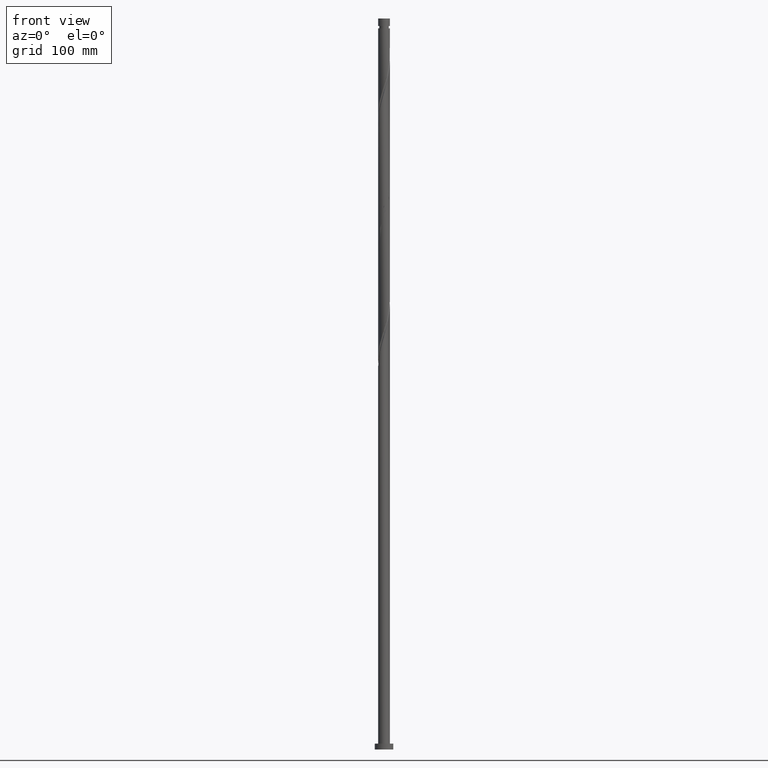
[diagram: clean part render]
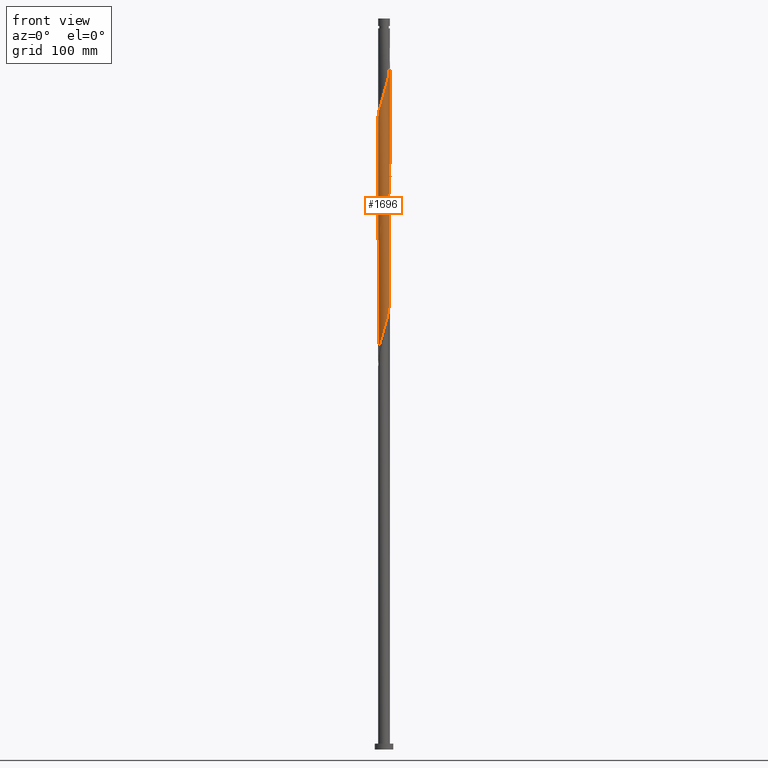
[diagram: same view with one face highlighted and labeled with its STEP entity id]
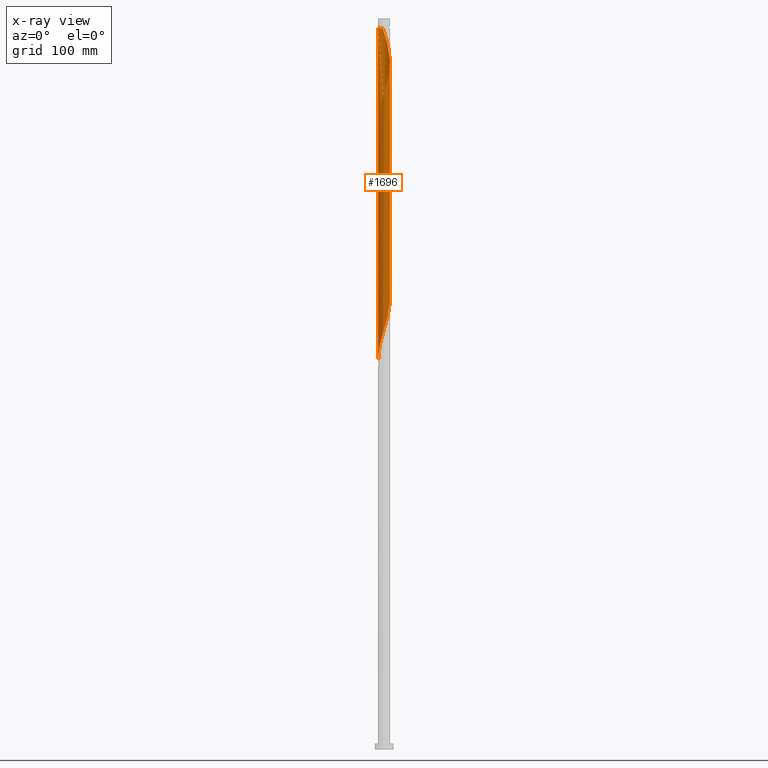
[diagram: x-ray of the same camera — body ghosted, the highlighted face saturated]
A machine part, front view. The second image highlights one B-rep face of the part: STEP entity #1696.
The next image is the same camera in x-ray: the body ghosted, the highlighted face saturated — about 0% of this face is hidden behind the body in this view.
In plain terms, the highlighted cylindrical surface (bore or boss wall) has radius 5.1 mm, axis along (-0, -0, -1).
Its self-contained STEP definition (entity closure, byte-faithful):
#1 = CARTESIAN_POINT ( 'NONE',  ( 2.617120146630278921, -4.377291644167875084, 476.3298745475585179 ) ) ;
#10 = CARTESIAN_POINT ( 'NONE',  ( -3.149726232636924195, -4.038881139580454693, 456.2563451357937083 ) ) ;
#20 = CARTESIAN_POINT ( 'NONE',  ( -4.804148149758891151, -1.775808760927855445, 446.9916392534408942 ) ) ;
#27 = CARTESIAN_POINT ( 'NONE',  ( 1.324962605423091633, -4.947505461790856707, 471.6975216063818834 ) ) ;
#34 = CARTESIAN_POINT ( 'NONE',  ( 3.022735951043644231, -4.134779748727637205, 477.8739921946173581 ) ) ;
#46 = CARTESIAN_POINT ( 'NONE',  ( -1.478020089766422629, -4.903956852834939539, 357.4328157240290693 ) ) ;
#56 = CARTESIAN_POINT ( 'NONE',  ( 2.211504342216913166, -4.619803539608112075, 369.7857569004996208 ) ) ;
#67 = CARTESIAN_POINT ( 'NONE',  ( -1.014887185848759144, -4.997999999999999332, 358.9769333710879096 ) ) ;
#77 = CARTESIAN_POINT ( 'NONE',  ( 3.731031912429758624, -3.508950992625950782, 375.9622274887350954 ) ) ;
#112 = CARTESIAN_POINT ( 'NONE',  ( 0.000000000000000000, 0.000000000000000000, 630.0000000000000000 ) ) ;
#119 = CARTESIAN_POINT ( 'NONE',  ( 3.493982426302045141, 3.715115988053732554, 507.2122274887350954 ) ) ;
#128 = CIRCLE ( 'NONE', #1535, 5.099999999999936584 ) ;
#133 = CARTESIAN_POINT ( 'NONE',  ( 3.838238619967167864, -3.391350836527018853, 579.7857569004996776 ) ) ;
#142 = CARTESIAN_POINT ( 'NONE',  ( -4.883037437443988438, 1.471715116631082232, 541.1828157240291830 ) ) ;
#149 = CARTESIAN_POINT ( 'NONE',  ( 5.019411926380546340, 1.019235062941185044, 595.2269333710878527 ) ) ;
#158 = CARTESIAN_POINT ( 'NONE',  ( -3.731031912429758624, 3.508950992625949006, 533.4622274887349249 ) ) ;
#167 = CARTESIAN_POINT ( 'NONE',  ( 5.099999999999998757, -6.348965959486229328E-15, 493.5751421457819106 ) ) ;
#174 = CARTESIAN_POINT ( 'NONE',  ( 5.019411926380538347, -1.019235062941185932, 490.2269333710879664 ) ) ;
#180 = CARTESIAN_POINT ( 'NONE',  ( -5.070321388801172446, 0.5494005954359167943, 439.2710510181468067 ) ) ;
#187 = DIRECTION ( 'NONE',  ( -0.000000000000000000, -0.000000000000000000, -1.000000000000000000 ) ) ;
#189 = VERTEX_POINT ( 'NONE', #1664 ) ;
#191 = CARTESIAN_POINT ( 'NONE',  ( -4.926400275711503518, -1.319310548532685701, 445.4475216063820540 ) ) ;
#201 = CARTESIAN_POINT ( 'NONE',  ( 3.022735951043644231, -4.134779748727637205, 372.8739921946173581 ) ) ;
#223 = EDGE_CURVE ( 'NONE', #821, #1413, #566, .T. ) ;
#225 = CARTESIAN_POINT ( 'NONE',  ( 4.117141507260704714, 3.009841492369831339, 399.1239921946173013 ) ) ;
#229 = DIRECTION ( 'NONE',  ( -0.000000000000000000, -0.000000000000000000, -1.000000000000000000 ) ) ;
#231 = CARTESIAN_POINT ( 'NONE',  ( -4.021651984673702884, -3.136290055809592747, 550.4475216063821108 ) ) ;
#236 = ORIENTED_EDGE ( 'NONE', *, *, #1733, .F. ) ;
#237 = CARTESIAN_POINT ( 'NONE',  ( -4.804148149758891151, -1.775808760927855445, 341.9916392534408374 ) ) ;
#242 = CARTESIAN_POINT ( 'NONE',  ( -3.731031912429765729, -3.508950992625955223, 551.9916392534408942 ) ) ;
#248 = CARTESIAN_POINT ( 'NONE',  ( -0.07922671285600939306, -5.099384583258064652, 362.0651686652055332 ) ) ;
#252 = CARTESIAN_POINT ( 'NONE',  ( -1.768233473820006063, -4.783654500699491940, 559.7122274887348112 ) ) ;
#259 = VERTEX_POINT ( 'NONE', #397 ) ;
#276 = CARTESIAN_POINT ( 'NONE',  ( 0.8591317308210872916, 5.027115740570972768, 615.3004627828526054 ) ) ;
#292 = CARTESIAN_POINT ( 'NONE',  ( 4.396044394554250445, -2.628332148212650488, 582.8739921946173581 ) ) ;
#304 = CARTESIAN_POINT ( 'NONE',  ( 4.117141507260710931, -3.009841492369834892, 581.3298745475583473 ) ) ;
#311 = CARTESIAN_POINT ( 'NONE',  ( -4.021651984673694891, 3.136290055809589639, 535.0063451357938220 ) ) ;
#316 = CARTESIAN_POINT ( 'NONE',  ( 2.751839964385698778, -4.293876664554978184, 575.1534039593233274 ) ) ;
#320 = CARTESIAN_POINT ( 'NONE',  ( 0.5517542819310938818, 5.092043147165057349, 518.0210510181466361 ) ) ;
#327 = CARTESIAN_POINT ( 'NONE',  ( 5.048652401664115885, 0.8628123361375154010, 496.4034039593232137 ) ) ;
#334 = CARTESIAN_POINT ( 'NONE',  ( 4.883037437443988438, -1.471715116631082010, 488.6828157240291830 ) ) ;
#337 = CARTESIAN_POINT ( 'NONE',  ( -0.3933008562190795643, -5.106726019351079948, 564.3445804299113888 ) ) ;
#343 = CARTESIAN_POINT ( 'NONE',  ( -4.021651984673694891, 3.136290055809589639, 430.0063451357938220 ) ) ;
#349 = CARTESIAN_POINT ( 'NONE',  ( 3.731031912429758624, -3.508950992625950782, 480.9622274887349249 ) ) ;
#358 = CARTESIAN_POINT ( 'NONE',  ( 1.014887185848759810, 4.997999999999999332, 411.4769333710877959 ) ) ;
#366 = CARTESIAN_POINT ( 'NONE',  ( -5.019411926380546340, -1.019235062941185932, 542.7269333710878527 ) ) ;
#378 =( BOUNDED_CURVE ( )  B_SPLINE_CURVE ( 2, ( #1742, #666, #1285, #174, #334, #1123, #1131, #1608, #1415, #349, #1752, #34, #1, #1769, #1295, #27, #1422, #1573, #796, #965, #1590, #1581, #1430, #1446, #492, #10, #1761, #641, #980, #1598, #806, #20, #191, #1259, #1935, #658, #180, #1106, #1900, #822, #673, #1928, #343, #1114, #815, #517, #650, #1267, #1277, #1141, #1778, #791, #1909, #482, #358, #1921, #971, #987, #501, #1193, #1811, #1835, #225, #1353, #1455, #707, #1484, #1634, #528, #381, #1494, #1008, #845, #1799, #1969, #1319, #718, #77, #857, #201, #869, #56, #695, #561, #1329, #1475, #248, #393, #67, #46, #1019, #1657, #550, #416, #1181, #1042, #575, #1646, #1340, #237, #403, #1946, #1149, #731, #1168 ),
 .UNSPECIFIED., .F., .T. ) 
 B_SPLINE_CURVE_WITH_KNOTS ( ( 3, 2, 2, 2, 2, 2, 2, 2, 2, 2, 2, 2, 2, 2, 2, 2, 2, 2, 2, 2, 2, 2, 2, 2, 2, 2, 2, 2, 2, 2, 2, 2, 2, 2, 2, 2, 2, 2, 2, 2, 2, 2, 2, 2, 2, 2, 2, 2, 2, 2, 2, 2, 3 ),
 ( 0.5545293573162906053, 0.5588235294117647189, 0.5661764705882352811, 0.5735294117647058432, 0.5808823529411765163, 0.5882352941176470784, 0.5955882352941176405, 0.6029411764705882026, 0.6102941176470588758, 0.6176470588235294379, 0.6250000000000000000, 0.6323529411764705621, 0.6397058823529411242, 0.6470588235294117974, 0.6544117647058823595, 0.6617647058823529216, 0.6691176470588234837, 0.6764705882352941568, 0.6838235294117647189, 0.6911764705882352811, 0.6985294117647058432, 0.7058823529411765163, 0.7132352941176470784, 0.7205882352941176405, 0.7279411764705882026, 0.7352941176470588758, 0.7426470588235294379, 0.7500000000000000000, 0.7573529411764705621, 0.7647058823529411242, 0.7720588235294117974, 0.7794117647058823595, 0.7867647058823529216, 0.7941176470588234837, 0.8014705882352941568, 0.8088235294117647189, 0.8161764705882352811, 0.8235294117647058432, 0.8308823529411765163, 0.8382352941176470784, 0.8455882352941176405, 0.8529411764705882026, 0.8602941176470588758, 0.8676470588235294379, 0.8750000000000000000, 0.8823529411764705621, 0.8897058823529411242, 0.8970588235294116863, 0.9044117647058822484, 0.9117647058823528106, 0.9191176470588233727, 0.9264705882352941568, 0.9295293573162906053 ),
 .UNSPECIFIED. ) 
 CURVE ( )  GEOMETRIC_REPRESENTATION_ITEM ( )  RATIONAL_B_SPLINE_CURVE ( ( 0.9072066346053202501, 0.9068261157890875612, 0.9090909090909587986, 0.9052128875409900521, 0.9090909090909587986, 0.9052128875409900521, 0.9090909090909587986, 0.9052128875409900521, 0.9090909090909587986, 0.9052128875409900521, 0.9090909090909587986, 0.9052128875409900521, 0.9090909090909587986, 0.9052128875409900521, 0.9090909090909587986, 0.9052128875409900521, 0.9090909090909587986, 0.9052128875409900521, 0.9090909090909587986, 0.9052128875409900521, 0.9090909090909587986, 0.9052128875409900521, 0.9090909090909587986, 0.9052128875409900521, 0.9090909090909587986, 0.9052128875409900521, 0.9090909090909587986, 0.9052128875409900521, 0.9090909090909587986, 0.9052128875409900521, 0.9090909090909587986, 0.9052128875409900521, 0.9090909090909587986, 0.9052128875409900521, 0.9090909090909587986, 0.9052128875409900521, 0.9090909090909587986, 0.9052128875409900521, 0.9090909090909587986, 0.9052128875409900521, 0.9090909090909587986, 0.9052128875409900521, 0.9090909090909587986, 0.9052128875409900521, 0.9090909090909587986, 0.9052128875409900521, 0.9090909090909587986, 0.9052128875409900521, 0.9090909090909587986, 0.9052128875409900521, 0.9090909090909587986, 0.9052128875409900521, 0.9090909090909587986, 0.9052128875409900521, 0.9090909090909587986, 0.9052128875409900521, 0.9090909090909587986, 0.9052128875409900521, 0.9090909090909587986, 0.9052128875409900521, 0.9090909090909587986, 0.9052128875409900521, 0.9090909090909587986, 0.9052128875409900521, 0.9090909090909587986, 0.9052128875409900521, 0.9090909090909587986, 0.9052128875409900521, 0.9090909090909587986, 0.9052128875409900521, 0.9090909090909587986, 0.9052128875409900521, 0.9090909090909587986, 0.9052128875409900521, 0.9090909090909587986, 0.9052128875409900521, 0.9090909090909587986, 0.9052128875409900521, 0.9090909090909587986, 0.9052128875409900521, 0.9090909090909587986, 0.9052128875409900521, 0.9090909090909587986, 0.9052128875409900521, 0.9090909090909587986, 0.9052128875409900521, 0.9090909090909587986, 0.9052128875409900521, 0.9090909090909587986, 0.9052128875409900521, 0.9090909090909587986, 0.9052128875409900521, 0.9090909090909587986, 0.9052128875409900521, 0.9090909090909587986, 0.9052128875409900521, 0.9090909090909587986, 0.9052128875409900521, 0.9090909090909587986, 0.9052128875409900521, 0.9090909090909587986, 0.9052128875409900521, 0.9090909090909587986, 0.9074776808428610675, 0.9072066346053202501 ) ) 
 REPRESENTATION_ITEM ( '' )  );
#381 = CARTESIAN_POINT ( 'NONE',  ( 5.121230851221807434, -0.07956612793064635203, 388.3151686652055332 ) ) ;
#393 = CARTESIAN_POINT ( 'NONE',  ( -0.5517542819310935487, -5.092043147165057349, 360.5210510181468067 ) ) ;
#397 = CARTESIAN_POINT ( 'NONE',  ( -1.014887185848815321, 4.997999999999938936, 621.4769333710880801 ) ) ;
#403 = CARTESIAN_POINT ( 'NONE',  ( -4.926400275711503518, -1.319310548532685701, 340.4475216063821108 ) ) ;
#416 = CARTESIAN_POINT ( 'NONE',  ( -3.149726232636924195, -4.038881139580454693, 351.2563451357936515 ) ) ;
#433 = CARTESIAN_POINT ( 'NONE',  ( 3.022735951043646896, 4.134779748727644311, 607.5798745475583473 ) ) ;
#444 = ORIENTED_EDGE ( 'NONE', *, *, #1820, .F. ) ;
#448 = CARTESIAN_POINT ( 'NONE',  ( 4.804148149758891151, 1.775808760927854557, 499.4916392534408374 ) ) ;
#457 = CARTESIAN_POINT ( 'NONE',  ( -4.529467502712533289, 2.343912144657103624, 538.0945804299113888 ) ) ;
#464 = CARTESIAN_POINT ( 'NONE',  ( 1.915986892950443332, 4.726414521182216610, 513.3886980769702859 ) ) ;
#474 = CARTESIAN_POINT ( 'NONE',  ( 4.312272056917638707, 2.763629118993229827, 601.4034039593232137 ) ) ;
#482 = CARTESIAN_POINT ( 'NONE',  ( 0.5517542819310938818, 5.092043147165057349, 413.0210510181468067 ) ) ;
#492 = CARTESIAN_POINT ( 'NONE',  ( -2.751839964385694337, -4.293876664554971079, 457.8004627828526623 ) ) ;
#501 = CARTESIAN_POINT ( 'NONE',  ( 2.751839964385694781, 4.293876664554971079, 405.3004627828526623 ) ) ;
#506 = EDGE_CURVE ( 'NONE', #1258, #541, #874, .T. ) ;
#508 = CARTESIAN_POINT ( 'NONE',  ( 1.478020089766425293, -4.903956852834943980, 570.5210510181467498 ) ) ;
#510 = CARTESIAN_POINT ( 'NONE',  ( 5.084941626442961216, 0.3916231041034345384, 494.8592863122644303 ) ) ;
#517 = CARTESIAN_POINT ( 'NONE',  ( -3.022735951043643787, 4.134779748727637205, 425.3739921946173013 ) ) ;
#528 = CARTESIAN_POINT ( 'NONE',  ( 5.084941626442961216, 0.3916231041034345384, 389.8592863122643735 ) ) ;
#541 = VERTEX_POINT ( 'NONE', #1470 ) ;
#550 = CARTESIAN_POINT ( 'NONE',  ( -2.751839964385694337, -4.293876664554971079, 352.8004627828526054 ) ) ;
#561 = CARTESIAN_POINT ( 'NONE',  ( 1.324962605423091633, -4.947505461790856707, 366.6975216063820540 ) ) ;
#566 = LINE ( 'NONE', #1975, #1982 ) ;
#575 = CARTESIAN_POINT ( 'NONE',  ( -4.117141507260705602, -3.009841492369830007, 346.6239921946173013 ) ) ;
#586 = CARTESIAN_POINT ( 'NONE',  ( 5.121230851221814540, 0.07956612793064861411, 592.1386980769702859 ) ) ;
#603 =( BOUNDED_CURVE ( )  B_SPLINE_CURVE ( 2, ( #633, #1549, #1874, #1849, #142, #1251, #457, #1563, #311, #158, #1734, #1397, #1243, #2054, #1891, #2032, #1863, #625, #1097, #320, #951, #1880, #464, #2016, #905, #1524, #119, #755, #604, #921, #1222, #448, #1707, #327, #510, #959, #167 ),
 .UNSPECIFIED., .F., .T. ) 
 B_SPLINE_CURVE_WITH_KNOTS ( ( 3, 2, 2, 2, 2, 2, 2, 2, 2, 2, 2, 2, 2, 2, 2, 2, 2, 2, 3 ),
 ( 0.4295293573162901057, 0.4338235294117647189, 0.4411764705882352811, 0.4485294117647058987, 0.4558823529411764608, 0.4632352941176470784, 0.4705882352941176405, 0.4779411764705882582, 0.4852941176470588203, 0.4926470588235294379, 0.5000000000000000000, 0.5073529411764705621, 0.5147058823529411242, 0.5220588235294117974, 0.5294117647058823595, 0.5367647058823529216, 0.5441176470588234837, 0.5514705882352941568, 0.5545293573162906053 ),
 .UNSPECIFIED. ) 
 CURVE ( )  GEOMETRIC_REPRESENTATION_ITEM ( )  RATIONAL_B_SPLINE_CURVE ( ( 0.9072066346053204722, 0.9068261157890873392, 0.9090909090909587986, 0.9052128875409900521, 0.9090909090909587986, 0.9052128875409900521, 0.9090909090909587986, 0.9052128875409900521, 0.9090909090909587986, 0.9052128875409900521, 0.9090909090909587986, 0.9052128875409900521, 0.9090909090909587986, 0.9052128875409900521, 0.9090909090909587986, 0.9052128875409900521, 0.9090909090909587986, 0.9052128875409900521, 0.9090909090909587986, 0.9052128875409900521, 0.9090909090909587986, 0.9052128875409900521, 0.9090909090909587986, 0.9052128875409900521, 0.9090909090909587986, 0.9052128875409900521, 0.9090909090909587986, 0.9052128875409900521, 0.9090909090909587986, 0.9052128875409900521, 0.9090909090909587986, 0.9052128875409900521, 0.9090909090909587986, 0.9052128875409900521, 0.9090909090909587986, 0.9074776808428610675, 0.9072066346053202501 ) ) 
 REPRESENTATION_ITEM ( '' )  );
#604 = CARTESIAN_POINT ( 'NONE',  ( 4.117141507260704714, 3.009841492369831339, 504.1239921946173581 ) ) ;
#617 = CARTESIAN_POINT ( 'NONE',  ( 4.746662948507444746, 1.924195170320982973, 598.3151686652056469 ) ) ;
#625 = CARTESIAN_POINT ( 'NONE',  ( -0.3933008562190772328, 5.106726019351072843, 521.1092863122644303 ) ) ;
#633 = CARTESIAN_POINT ( 'NONE',  ( -5.099999999999998757, 3.181952351460157412E-15, 546.0751421457820243 ) ) ;
#641 = CARTESIAN_POINT ( 'NONE',  ( -3.838238619967163867, -3.391350836527013080, 453.1681098416760847 ) ) ;
#649 = DIRECTION ( 'NONE',  ( -0.000000000000000000, -0.000000000000000000, -1.000000000000000000 ) ) ;
#650 = CARTESIAN_POINT ( 'NONE',  ( -2.617120146630278921, 4.377291644167875084, 423.8298745475585747 ) ) ;
#658 = CARTESIAN_POINT ( 'NONE',  ( -5.121230851221807434, 0.07956612793064686551, 440.8151686652055332 ) ) ;
#665 = ORIENTED_EDGE ( 'NONE', *, *, #843, .T. ) ;
#666 = CARTESIAN_POINT ( 'NONE',  ( 5.099999999999997868, -0.2755019167642607791, 492.6712229137692134 ) ) ;
#673 = CARTESIAN_POINT ( 'NONE',  ( -4.529467502712533289, 2.343912144657103624, 433.0945804299114457 ) ) ;
#695 = CARTESIAN_POINT ( 'NONE',  ( 1.768233473820003399, -4.783654500699486611, 368.2416392534407805 ) ) ;
#707 = CARTESIAN_POINT ( 'NONE',  ( 4.804148149758891151, 1.775808760927854557, 394.4916392534409511 ) ) ;
#718 = CARTESIAN_POINT ( 'NONE',  ( 4.021651984673694891, -3.136290055809588750, 377.5063451357937652 ) ) ;
#731 = CARTESIAN_POINT ( 'NONE',  ( -5.100000000000000533, -0.1961010582271697500, 336.7185478978416882 ) ) ;
#755 = CARTESIAN_POINT ( 'NONE',  ( 3.838238619967164311, 3.391350836527012635, 505.6681098416759710 ) ) ;
#766 = CARTESIAN_POINT ( 'NONE',  ( 4.021651984673701996, 3.136290055809593635, 602.9475216063819971 ) ) ;
#774 = CARTESIAN_POINT ( 'NONE',  ( 3.731031912429765729, 3.508950992625953891, 604.4916392534408942 ) ) ;
#781 = CARTESIAN_POINT ( 'NONE',  ( 2.211504342216917607, 4.619803539608117404, 610.6681098416760278 ) ) ;
#791 = CARTESIAN_POINT ( 'NONE',  ( -0.3933008562190772328, 5.106726019351072843, 416.1092863122643735 ) ) ;
#796 = CARTESIAN_POINT ( 'NONE',  ( -0.07922671285600939306, -5.099384583258064652, 467.0651686652056469 ) ) ;
#806 = CARTESIAN_POINT ( 'NONE',  ( -4.600096272156569910, -2.202070454570250746, 448.5357569004996776 ) ) ;
#815 = CARTESIAN_POINT ( 'NONE',  ( -3.376883931736701872, 3.821865370676793994, 426.9181098416761415 ) ) ;
#821 = VERTEX_POINT ( 'NONE', #1722 ) ;
#822 = CARTESIAN_POINT ( 'NONE',  ( -4.746662948507436752, 1.924195170320980086, 434.6386980769701154 ) ) ;
#827 = CARTESIAN_POINT ( 'NONE',  ( -5.099999999999999645, 0.000000000000000000, 630.0000000000000000 ) ) ;
#828 = CARTESIAN_POINT ( 'NONE',  ( -5.099999999999999645, 0.000000000000000000, 630.0000000000000000 ) ) ;
#843 = EDGE_CURVE ( 'NONE', #1968, #259, #128, .T. ) ;
#845 = CARTESIAN_POINT ( 'NONE',  ( 4.883037437443988438, -1.471715116631082010, 383.6828157240291262 ) ) ;
#857 = CARTESIAN_POINT ( 'NONE',  ( 3.376883931736700983, -3.821865370676793994, 374.4181098416761415 ) ) ;
#869 = CARTESIAN_POINT ( 'NONE',  ( 2.617120146630278921, -4.377291644167875084, 371.3298745475584610 ) ) ;
#874 = LINE ( 'NONE', #828, #1045 ) ;
#905 = CARTESIAN_POINT ( 'NONE',  ( 2.751839964385694781, 4.293876664554971079, 510.3004627828526623 ) ) ;
#921 = CARTESIAN_POINT ( 'NONE',  ( 4.396044394554245116, 2.628332148212648267, 502.5798745475583473 ) ) ;
#933 = EDGE_LOOP ( 'NONE', ( #1339, #665, #236, #1999, #444, #2071, #1945, #1052 ) ) ;
#934 = CARTESIAN_POINT ( 'NONE',  ( 5.084941626442967433, -0.3916231041034375360, 590.5945804299115025 ) ) ;
#945 = CARTESIAN_POINT ( 'NONE',  ( 5.070321388801181328, 0.5494005954359167943, 593.6828157240289556 ) ) ;
#951 = CARTESIAN_POINT ( 'NONE',  ( 1.014887185848759810, 4.997999999999999332, 516.4769333710878527 ) ) ;
#959 = CARTESIAN_POINT ( 'NONE',  ( 5.100000000000000533, 0.1961010582271696390, 494.2185478978416882 ) ) ;
#965 = CARTESIAN_POINT ( 'NONE',  ( -0.5517542819310935487, -5.092043147165057349, 465.5210510181468067 ) ) ;
#971 = CARTESIAN_POINT ( 'NONE',  ( 1.915986892950443332, 4.726414521182216610, 408.3886980769702859 ) ) ;
#980 = CARTESIAN_POINT ( 'NONE',  ( -4.117141507260705602, -3.009841492369830007, 451.6239921946173581 ) ) ;
#987 = CARTESIAN_POINT ( 'NONE',  ( 2.353953696134467144, 4.548872189529485688, 406.8445804299115025 ) ) ;
#1007 = CARTESIAN_POINT ( 'NONE',  ( -5.100000000000008527, -0.2755019167642385747, 540.2826438284065489 ) ) ;
#1008 = CARTESIAN_POINT ( 'NONE',  ( 5.019411926380538347, -1.019235062941185932, 385.2269333710879096 ) ) ;
#1014 = CARTESIAN_POINT ( 'NONE',  ( -4.746662948507444746, -1.924195170320982751, 545.8151686652055332 ) ) ;
#1019 = CARTESIAN_POINT ( 'NONE',  ( -1.915986892950445108, -4.726414521182216610, 355.8886980769702859 ) ) ;
#1042 = CARTESIAN_POINT ( 'NONE',  ( -3.838238619967163867, -3.391350836527013080, 348.1681098416762552 ) ) ;
#1045 = VECTOR ( 'NONE', #1976, 1000.000000000000000 ) ;
#1052 = ORIENTED_EDGE ( 'NONE', *, *, #1792, .F. ) ;
#1056 = CARTESIAN_POINT ( 'NONE',  ( 0.3933008562190803969, 5.106726019351079948, 616.8445804299113888 ) ) ;
#1070 = CARTESIAN_POINT ( 'NONE',  ( 4.926400275711511512, -1.319310548532686367, 587.5063451357937083 ) ) ;
#1079 = CARTESIAN_POINT ( 'NONE',  ( -1.014887185848815321, 4.997999999999938936, 621.4769333710880801 ) ) ;
#1089 = CARTESIAN_POINT ( 'NONE',  ( 1.768233473820008728, 4.783654500699490164, 612.2122274887350386 ) ) ;
#1097 = CARTESIAN_POINT ( 'NONE',  ( 0.07922671285600824120, 5.099384583258064652, 519.5651686652055332 ) ) ;
#1104 = FACE_OUTER_BOUND ( 'NONE', #933, .T. ) ;
#1106 = CARTESIAN_POINT ( 'NONE',  ( -5.019411926380538347, 1.019235062941185488, 437.7269333710879096 ) ) ;
#1114 = CARTESIAN_POINT ( 'NONE',  ( -3.731031912429758624, 3.508950992625949006, 428.4622274887348681 ) ) ;
#1123 = CARTESIAN_POINT ( 'NONE',  ( 4.746662948507438529, -1.924195170320978088, 487.1386980769702291 ) ) ;
#1130 = CARTESIAN_POINT ( 'NONE',  ( 1.915986892950445997, -4.726414521182221939, 572.0651686652056469 ) ) ;
#1131 = CARTESIAN_POINT ( 'NONE',  ( 4.529467502712533289, -2.343912144657105845, 485.5945804299115593 ) ) ;
#1141 = CARTESIAN_POINT ( 'NONE',  ( -1.324962605423092077, 4.947505461790856707, 419.1975216063821108 ) ) ;
#1149 = CARTESIAN_POINT ( 'NONE',  ( -5.084941626442961216, -0.3916231041034350935, 337.3592863122643735 ) ) ;
#1168 = CARTESIAN_POINT ( 'NONE',  ( -5.099999999999998757, 6.124884807974950042E-15, 336.0751421457819674 ) ) ;
#1181 = CARTESIAN_POINT ( 'NONE',  ( -3.493982426302042921, -3.715115988053734775, 349.7122274887350386 ) ) ;
#1187 = CARTESIAN_POINT ( 'NONE',  ( -3.022735951043648228, -4.134779748727643423, 555.0798745475583473 ) ) ;
#1193 = CARTESIAN_POINT ( 'NONE',  ( 3.149726232636922418, 4.038881139580454693, 403.7563451357937652 ) ) ;
#1205 = CARTESIAN_POINT ( 'NONE',  ( 0.000000000000000000, 0.000000000000000000, 621.4769333710878527 ) ) ;
#1208 = CARTESIAN_POINT ( 'NONE',  ( -0.5517542819310869984, 5.092043147165065342, 619.9328157240289556 ) ) ;
#1215 = VECTOR ( 'NONE', #187, 1000.000000000000000 ) ;
#1222 = CARTESIAN_POINT ( 'NONE',  ( 4.600096272156570798, 2.202070454570249858, 501.0357569004996776 ) ) ;
#1229 =( BOUNDED_CURVE ( )  B_SPLINE_CURVE ( 2, ( #1445, #1007, #1787, #366, #1318, #1014, #1640, #1977, #231, #242, #1346, #1187, #1830, #1665, #252, #1690, #1270, #337, #1407, #1659, #1496, #508, #1130, #1768, #316, #1536, #1718, #133, #304, #292, #2045, #2064, #1070, #1375, #934, #586, #945, #149, #1389, #617, #1726, #474, #766, #774, #1685, #433, #1557, #781, #1089, #1234, #276, #1056, #1364, #1208, #1079 ),
 .UNSPECIFIED., .F., .T. ) 
 B_SPLINE_CURVE_WITH_KNOTS ( ( 3, 2, 2, 2, 2, 2, 2, 2, 2, 2, 2, 2, 2, 2, 2, 2, 2, 2, 2, 2, 2, 2, 2, 2, 2, 2, 2, 3 ),
 ( 0.5545293573162902723, 0.5588235294117647189, 0.5661764705882352811, 0.5735294117647058432, 0.5808823529411764053, 0.5882352941176470784, 0.5955882352941176405, 0.6029411764705883137, 0.6102941176470588758, 0.6176470588235294379, 0.6250000000000000000, 0.6323529411764705621, 0.6397058823529411242, 0.6470588235294116863, 0.6544117647058822484, 0.6617647058823528106, 0.6691176470588235947, 0.6764705882352940458, 0.6838235294117646079, 0.6911764705882351700, 0.6985294117647057321, 0.7058823529411762943, 0.7132352941176469674, 0.7205882352941175295, 0.7279411764705882026, 0.7352941176470587648, 0.7426470588235293269, 0.7499999999999998890 ),
 .UNSPECIFIED. ) 
 CURVE ( )  GEOMETRIC_REPRESENTATION_ITEM ( )  RATIONAL_B_SPLINE_CURVE ( ( 0.9072066346053263564, 0.9068261157890933344, 0.9090909090909647938, 0.9052128875409960473, 0.9090909090909647938, 0.9052128875409960473, 0.9090909090909647938, 0.9052128875409960473, 0.9090909090909647938, 0.9052128875409960473, 0.9090909090909647938, 0.9052128875409960473, 0.9090909090909647938, 0.9052128875409960473, 0.9090909090909647938, 0.9052128875409960473, 0.9090909090909647938, 0.9052128875409960473, 0.9090909090909647938, 0.9052128875409960473, 0.9090909090909647938, 0.9052128875409960473, 0.9090909090909647938, 0.9052128875409960473, 0.9090909090909647938, 0.9052128875409960473, 0.9090909090909647938, 0.9052128875409960473, 0.9090909090909647938, 0.9052128875409960473, 0.9090909090909647938, 0.9052128875409960473, 0.9090909090909647938, 0.9052128875409960473, 0.9090909090909647938, 0.9052128875409960473, 0.9090909090909647938, 0.9052128875409960473, 0.9090909090909647938, 0.9052128875409960473, 0.9090909090909647938, 0.9052128875409960473, 0.9090909090909647938, 0.9052128875409960473, 0.9090909090909647938, 0.9052128875409960473, 0.9090909090909647938, 0.9052128875409960473, 0.9090909090909647938, 0.9052128875409960473, 0.9090909090909647938, 0.9052128875409960473, 0.9090909090909647938, 0.9052128875409961584, 0.9090909090909646828 ) ) 
 REPRESENTATION_ITEM ( '' )  );
#1234 = CARTESIAN_POINT ( 'NONE',  ( 1.324962605423093631, 4.947505461790864700, 613.7563451357937083 ) ) ;
#1243 = CARTESIAN_POINT ( 'NONE',  ( -2.617120146630278921, 4.377291644167875084, 528.8298745475584610 ) ) ;
#1251 = CARTESIAN_POINT ( 'NONE',  ( -4.746662948507436752, 1.924195170320980086, 539.6386980769703996 ) ) ;
#1258 = VERTEX_POINT ( 'NONE', #1595 ) ;
#1259 = CARTESIAN_POINT ( 'NONE',  ( -5.048652401664114997, -0.8628123361375167333, 443.9034039593231569 ) ) ;
#1267 = CARTESIAN_POINT ( 'NONE',  ( -2.211504342216914054, 4.619803539608112075, 422.2857569004994502 ) ) ;
#1270 = CARTESIAN_POINT ( 'NONE',  ( -0.8591317308210866255, -5.027115740570972768, 562.8004627828526054 ) ) ;
#1277 = CARTESIAN_POINT ( 'NONE',  ( -1.768233473820002510, 4.783654500699486611, 420.7416392534410079 ) ) ;
#1285 = CARTESIAN_POINT ( 'NONE',  ( 5.070321388801172446, -0.5494005954359185706, 491.7710510181467498 ) ) ;
#1290 = EDGE_CURVE ( 'NONE', #1968, #189, #1940, .T. ) ;
#1295 = CARTESIAN_POINT ( 'NONE',  ( 1.768233473820003399, -4.783654500699486611, 473.2416392534409511 ) ) ;
#1318 = CARTESIAN_POINT ( 'NONE',  ( -4.883037437443995543, -1.471715116631083564, 544.2710510181468635 ) ) ;
#1319 = CARTESIAN_POINT ( 'NONE',  ( 4.312272056917629826, -2.763629118993228495, 379.0504627828524917 ) ) ;
#1329 = CARTESIAN_POINT ( 'NONE',  ( 0.8591317308210856263, -5.027115740570964775, 365.1534039593231569 ) ) ;
#1339 = ORIENTED_EDGE ( 'NONE', *, *, #1290, .F. ) ;
#1340 = CARTESIAN_POINT ( 'NONE',  ( -4.600096272156569910, -2.202070454570250746, 343.5357569004996776 ) ) ;
#1346 = CARTESIAN_POINT ( 'NONE',  ( -3.376883931736708089, -3.821865370676797546, 553.5357569004996776 ) ) ;
#1353 = CARTESIAN_POINT ( 'NONE',  ( 4.396044394554245116, 2.628332148212648267, 397.5798745475584610 ) ) ;
#1364 = CARTESIAN_POINT ( 'NONE',  ( -0.07922671285600897673, 5.099384583258072645, 618.3886980769703996 ) ) ;
#1375 = CARTESIAN_POINT ( 'NONE',  ( 5.048652401664122991, -0.8628123361375190647, 589.0504627828523780 ) ) ;
#1389 = CARTESIAN_POINT ( 'NONE',  ( 4.883037437443995543, 1.471715116631081566, 596.7710510181467498 ) ) ;
#1397 = CARTESIAN_POINT ( 'NONE',  ( -3.022735951043643787, 4.134779748727637205, 530.3739921946173581 ) ) ;
#1407 = CARTESIAN_POINT ( 'NONE',  ( 0.07922671285600750568, -5.099384583258072645, 565.8886980769703996 ) ) ;
#1413 = VERTEX_POINT ( 'NONE', #1747 ) ;
#1415 = CARTESIAN_POINT ( 'NONE',  ( 4.021651984673694891, -3.136290055809588750, 482.5063451357939357 ) ) ;
#1422 = CARTESIAN_POINT ( 'NONE',  ( 0.8591317308210856263, -5.027115740570964775, 470.1534039593232706 ) ) ;
#1430 = CARTESIAN_POINT ( 'NONE',  ( -1.915986892950445108, -4.726414521182216610, 460.8886980769702859 ) ) ;
#1445 = CARTESIAN_POINT ( 'NONE',  ( -5.100000000000008527, -2.718851305003496779E-15, 539.3787245963939085 ) ) ;
#1446 = CARTESIAN_POINT ( 'NONE',  ( -2.353953696134465812, -4.548872189529486576, 459.3445804299115025 ) ) ;
#1455 = CARTESIAN_POINT ( 'NONE',  ( 4.600096272156570798, 2.202070454570249858, 396.0357569004996776 ) ) ;
#1470 = CARTESIAN_POINT ( 'NONE',  ( -5.099999999999998757, 6.124884807974950831E-15, 336.0751421457819674 ) ) ;
#1475 = CARTESIAN_POINT ( 'NONE',  ( 0.3933008562190772328, -5.106726019351072843, 363.6092863122643166 ) ) ;
#1476 = CARTESIAN_POINT ( 'NONE',  ( -5.099999999999936584, 0.000000000000000000, 621.4769333710878527 ) ) ;
#1484 = CARTESIAN_POINT ( 'NONE',  ( 4.926400275711502630, 1.319310548532687255, 392.9475216063819971 ) ) ;
#1494 = CARTESIAN_POINT ( 'NONE',  ( 5.070321388801172446, -0.5494005954359185706, 386.7710510181467498 ) ) ;
#1496 = CARTESIAN_POINT ( 'NONE',  ( 1.014887185848758699, -4.998000000000006438, 568.9769333710879664 ) ) ;
#1524 = CARTESIAN_POINT ( 'NONE',  ( 3.149726232636922418, 4.038881139580454693, 508.7563451357937083 ) ) ;
#1535 = AXIS2_PLACEMENT_3D ( 'NONE', #1205, #1844, #1703 ) ;
#1536 = CARTESIAN_POINT ( 'NONE',  ( 3.149726232636926859, -4.038881139580462687, 576.6975216063818834 ) ) ;
#1549 = CARTESIAN_POINT ( 'NONE',  ( -5.100000000000001421, 0.2755019167642304145, 545.1712229137692702 ) ) ;
#1557 = CARTESIAN_POINT ( 'NONE',  ( 2.617120146630282473, 4.377291644167880413, 609.1239921946173581 ) ) ;
#1563 = CARTESIAN_POINT ( 'NONE',  ( -4.312272056917629826, 2.763629118993228939, 536.5504627828526054 ) ) ;
#1573 = CARTESIAN_POINT ( 'NONE',  ( 0.3933008562190772328, -5.106726019351072843, 468.6092863122643166 ) ) ;
#1581 = CARTESIAN_POINT ( 'NONE',  ( -1.478020089766422629, -4.903956852834939539, 462.4328157240290693 ) ) ;
#1590 = CARTESIAN_POINT ( 'NONE',  ( -1.014887185848759144, -4.997999999999999332, 463.9769333710879664 ) ) ;
#1595 = CARTESIAN_POINT ( 'NONE',  ( -5.100000000000008527, -2.718851305003497173E-15, 539.3787245963939085 ) ) ;
#1598 = CARTESIAN_POINT ( 'NONE',  ( -4.396044394554245116, -2.628332148212646935, 450.0798745475584610 ) ) ;
#1608 = CARTESIAN_POINT ( 'NONE',  ( 4.312272056917629826, -2.763629118993228495, 484.0504627828526054 ) ) ;
#1633 = AXIS2_PLACEMENT_3D ( 'NONE', #112, #649, #2062 ) ;
#1634 = CARTESIAN_POINT ( 'NONE',  ( 5.048652401664115885, 0.8628123361375154010, 391.4034039593232706 ) ) ;
#1640 = CARTESIAN_POINT ( 'NONE',  ( -4.529467502712541283, -2.343912144657107177, 547.3592863122643166 ) ) ;
#1646 = CARTESIAN_POINT ( 'NONE',  ( -4.396044394554245116, -2.628332148212646935, 345.0798745475584610 ) ) ;
#1657 = CARTESIAN_POINT ( 'NONE',  ( -2.353953696134465812, -4.548872189529486576, 354.3445804299114457 ) ) ;
#1659 = CARTESIAN_POINT ( 'NONE',  ( 0.5517542819310949920, -5.092043147165065342, 567.4328157240290693 ) ) ;
#1664 = CARTESIAN_POINT ( 'NONE',  ( -5.099999999999999645, 3.181952351460157412E-15, 546.0751421457820243 ) ) ;
#1665 = CARTESIAN_POINT ( 'NONE',  ( -2.211504342216917163, -4.619803539608117404, 558.1681098416761415 ) ) ;
#1685 = CARTESIAN_POINT ( 'NONE',  ( 3.376883931736709421, 3.821865370676797546, 606.0357569004997913 ) ) ;
#1690 = CARTESIAN_POINT ( 'NONE',  ( -1.324962605423095408, -4.947505461790863812, 561.2563451357935946 ) ) ;
#1696 = ADVANCED_FACE ( 'NONE', ( #1104 ), #1705, .T. ) ;
#1703 = DIRECTION ( 'NONE',  ( -1.000000000000000000, 0.000000000000000000, 0.000000000000000000 ) ) ;
#1705 = CYLINDRICAL_SURFACE ( 'NONE', #1633, 5.099999999999999645 ) ;
#1707 = CARTESIAN_POINT ( 'NONE',  ( 4.926400275711502630, 1.319310548532687255, 497.9475216063819971 ) ) ;
#1718 = CARTESIAN_POINT ( 'NONE',  ( 3.493982426302048250, -3.715115988053740104, 578.2416392534408942 ) ) ;
#1722 = CARTESIAN_POINT ( 'NONE',  ( 5.099999999999999645, 6.245698675651500839E-16, 621.4769333710880801 ) ) ;
#1726 = CARTESIAN_POINT ( 'NONE',  ( 4.529467502712541283, 2.343912144657106733, 599.8592863122643166 ) ) ;
#1733 = EDGE_CURVE ( 'NONE', #1258, #259, #1229, .T. ) ;
#1734 = CARTESIAN_POINT ( 'NONE',  ( -3.376883931736701872, 3.821865370676793994, 531.9181098416761415 ) ) ;
#1742 = CARTESIAN_POINT ( 'NONE',  ( 5.099999999999998757, -6.348965959486229328E-15, 493.5751421457819106 ) ) ;
#1747 = CARTESIAN_POINT ( 'NONE',  ( 5.099999999999998757, -6.348965959486229328E-15, 493.5751421457819106 ) ) ;
#1752 = CARTESIAN_POINT ( 'NONE',  ( 3.376883931736700983, -3.821865370676793994, 479.4181098416761415 ) ) ;
#1761 = CARTESIAN_POINT ( 'NONE',  ( -3.493982426302042921, -3.715115988053734775, 454.7122274887349818 ) ) ;
#1768 = CARTESIAN_POINT ( 'NONE',  ( 2.353953696134468032, -4.548872189529495458, 573.6092863122643166 ) ) ;
#1769 = CARTESIAN_POINT ( 'NONE',  ( 2.211504342216913166, -4.619803539608112075, 474.7857569004996208 ) ) ;
#1778 = CARTESIAN_POINT ( 'NONE',  ( -0.8591317308210847381, 5.027115740570964775, 417.6534039593233274 ) ) ;
#1787 = CARTESIAN_POINT ( 'NONE',  ( -5.070321388801181328, -0.5494005954359160171, 541.1828157240289556 ) ) ;
#1792 = EDGE_CURVE ( 'NONE', #189, #1413, #603, .T. ) ;
#1799 = CARTESIAN_POINT ( 'NONE',  ( 4.746662948507438529, -1.924195170320978088, 382.1386980769701722 ) ) ;
#1811 = CARTESIAN_POINT ( 'NONE',  ( 3.493982426302045141, 3.715115988053732554, 402.2122274887350386 ) ) ;
#1820 = EDGE_CURVE ( 'NONE', #1413, #541, #378, .T. ) ;
#1830 = CARTESIAN_POINT ( 'NONE',  ( -2.617120146630283806, -4.377291644167880413, 556.6239921946174718 ) ) ;
#1835 = CARTESIAN_POINT ( 'NONE',  ( 3.838238619967164311, 3.391350836527012635, 400.6681098416760847 ) ) ;
#1844 = DIRECTION ( 'NONE',  ( -0.000000000000000000, -0.000000000000000000, -1.000000000000000000 ) ) ;
#1849 = CARTESIAN_POINT ( 'NONE',  ( -5.019411926380538347, 1.019235062941185488, 542.7269333710878527 ) ) ;
#1863 = CARTESIAN_POINT ( 'NONE',  ( -0.8591317308210847381, 5.027115740570964775, 522.6534039593231000 ) ) ;
#1874 = CARTESIAN_POINT ( 'NONE',  ( -5.070321388801172446, 0.5494005954359167943, 544.2710510181467498 ) ) ;
#1880 = CARTESIAN_POINT ( 'NONE',  ( 1.478020089766423295, 4.903956852834939539, 514.9328157240290693 ) ) ;
#1891 = CARTESIAN_POINT ( 'NONE',  ( -1.768233473820002510, 4.783654500699486611, 525.7416392534410079 ) ) ;
#1900 = CARTESIAN_POINT ( 'NONE',  ( -4.883037437443988438, 1.471715116631082232, 436.1828157240290693 ) ) ;
#1909 = CARTESIAN_POINT ( 'NONE',  ( 0.07922671285600824120, 5.099384583258064652, 414.5651686652055332 ) ) ;
#1921 = CARTESIAN_POINT ( 'NONE',  ( 1.478020089766423295, 4.903956852834939539, 409.9328157240290693 ) ) ;
#1928 = CARTESIAN_POINT ( 'NONE',  ( -4.312272056917629826, 2.763629118993228939, 431.5504627828526054 ) ) ;
#1935 = CARTESIAN_POINT ( 'NONE',  ( -5.084941626442961216, -0.3916231041034350935, 442.3592863122644303 ) ) ;
#1940 = LINE ( 'NONE', #827, #1215 ) ;
#1945 = ORIENTED_EDGE ( 'NONE', *, *, #223, .T. ) ;
#1946 = CARTESIAN_POINT ( 'NONE',  ( -5.048652401664114997, -0.8628123361375167333, 338.9034039593231569 ) ) ;
#1968 = VERTEX_POINT ( 'NONE', #1476 ) ;
#1969 = CARTESIAN_POINT ( 'NONE',  ( 4.529467502712533289, -2.343912144657105845, 380.5945804299115025 ) ) ;
#1975 = CARTESIAN_POINT ( 'NONE',  ( 5.099999999999999645, 6.245698675651500839E-16, 630.0000000000000000 ) ) ;
#1976 = DIRECTION ( 'NONE',  ( -0.000000000000000000, -0.000000000000000000, -1.000000000000000000 ) ) ;
#1977 = CARTESIAN_POINT ( 'NONE',  ( -4.312272056917636931, -2.763629118993231604, 548.9034039593229863 ) ) ;
#1982 = VECTOR ( 'NONE', #229, 1000.000000000000000 ) ;
#1999 = ORIENTED_EDGE ( 'NONE', *, *, #506, .T. ) ;
#2016 = CARTESIAN_POINT ( 'NONE',  ( 2.353953696134467144, 4.548872189529485688, 511.8445804299114457 ) ) ;
#2032 = CARTESIAN_POINT ( 'NONE',  ( -1.324962605423092077, 4.947505461790856707, 524.1975216063819971 ) ) ;
#2045 = CARTESIAN_POINT ( 'NONE',  ( 4.600096272156573463, -2.202070454570254743, 584.4181098416760278 ) ) ;
#2054 = CARTESIAN_POINT ( 'NONE',  ( -2.211504342216914054, 4.619803539608112075, 527.2857569004995639 ) ) ;
#2062 = DIRECTION ( 'NONE',  ( -1.000000000000000000, 0.000000000000000000, 0.000000000000000000 ) ) ;
#2064 = CARTESIAN_POINT ( 'NONE',  ( 4.804148149758898256, -1.775808760927859886, 585.9622274887349249 ) ) ;
#2071 = ORIENTED_EDGE ( 'NONE', *, *, #223, .F. ) ;